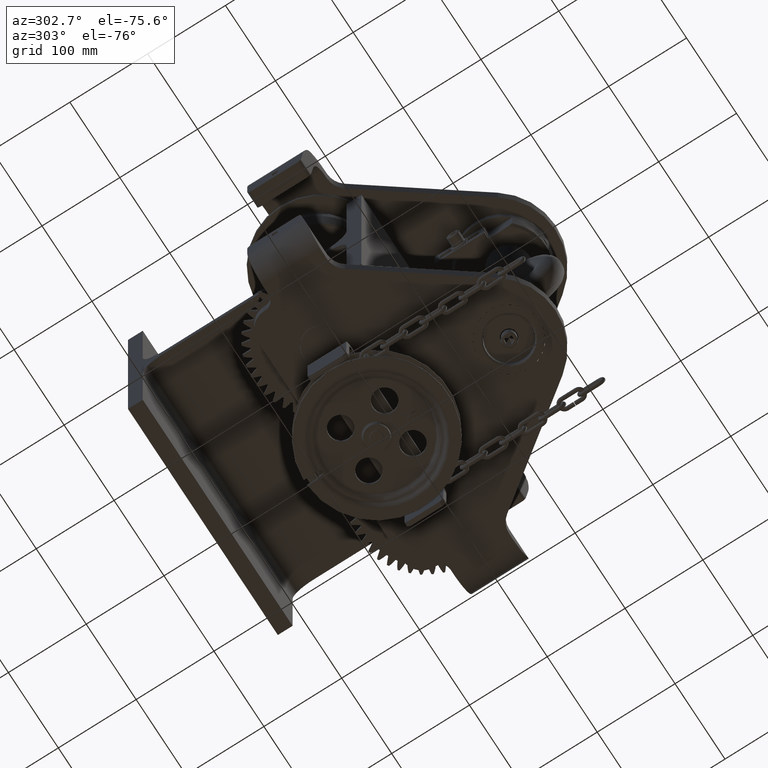
[diagram: clean part render]
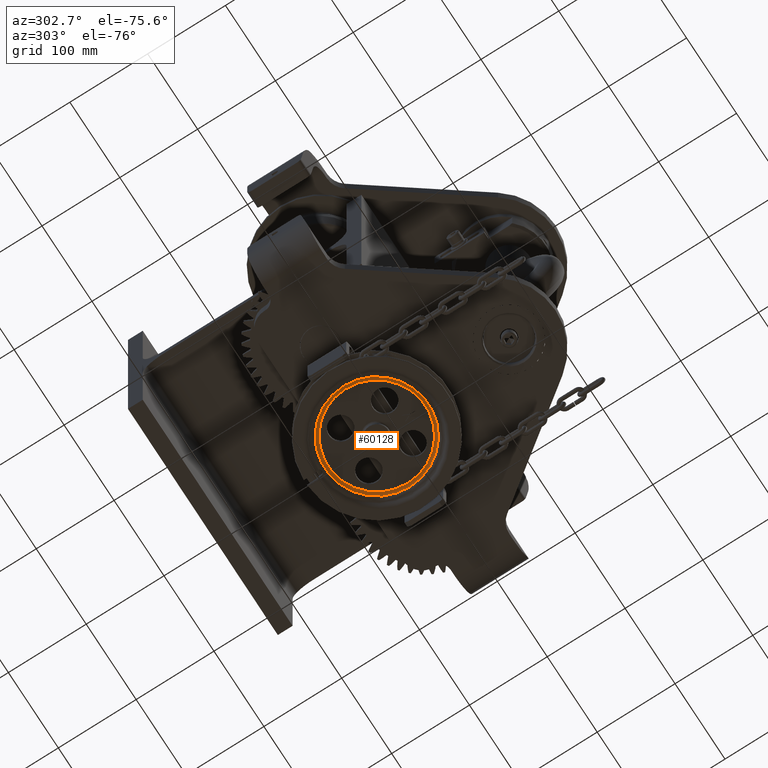
[diagram: same view with one face highlighted and labeled with its STEP entity id]
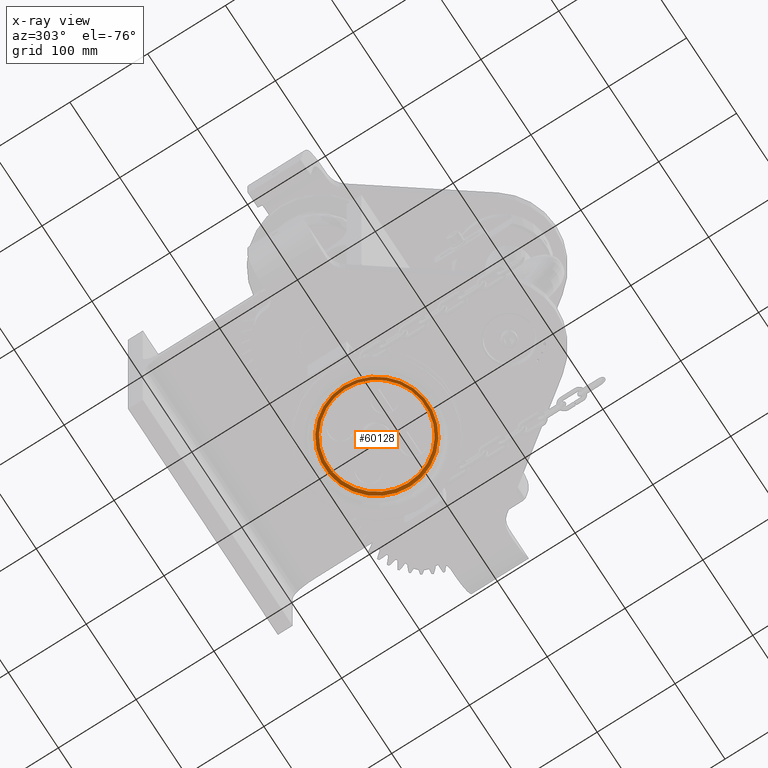
[diagram: x-ray of the same camera — body ghosted, the highlighted face saturated]
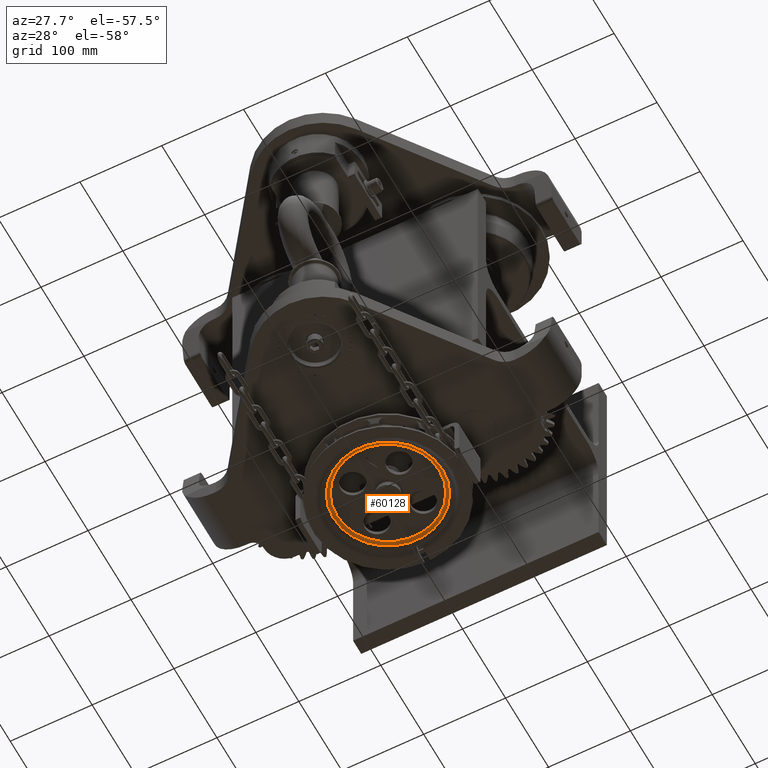
[diagram: same view with one face highlighted and labeled with its STEP entity id]
A machine part, auxiliary view. The second image highlights one B-rep face of the part: STEP entity #60128.
The next image is the same camera in x-ray: the body ghosted, the highlighted face saturated — about 0% of this face is hidden behind the body in this view.
A second angle (auxiliary view) of the same face is appended — the face is thin or edge-on in the first view.
In plain terms, the highlighted toroidal blend (fillet) surface has major radius 62.575 mm and minor (blend) radius 5 mm.
Its self-contained STEP definition (entity closure, byte-faithful):
#1025 = VERTEX_POINT ( 'NONE', #15578 ) ;
#3228 = CARTESIAN_POINT ( 'NONE',  ( 2.775557561562892600E-014, -73.49999999999934600, -248.2222222222222300 ) ) ;
#3545 = EDGE_CURVE ( 'NONE', #1025, #1025, #50686, .T. ) ;
#5685 = DIRECTION ( 'NONE',  ( 1.000000000000000000, -7.681083481868015000E-047, 1.863569723308740800E-031 ) ) ;
#6986 = FACE_OUTER_BOUND ( 'NONE', #47394, .T. ) ;
#8419 = DIRECTION ( 'NONE',  ( 1.000000000000000000, 0.0000000000000000000, 0.0000000000000000000 ) ) ;
#9436 = FACE_OUTER_BOUND ( 'NONE', #15061, .T. ) ;
#9992 = AXIS2_PLACEMENT_3D ( 'NONE', #16004, #10419, #5685 ) ;
#10419 = DIRECTION ( 'NONE',  ( -1.863569723308740800E-031, -4.121704375101331800E-016, 1.000000000000000000 ) ) ;
#12837 = ORIENTED_EDGE ( 'NONE', *, *, #3545, .F. ) ;
#15061 = EDGE_LOOP ( 'NONE', ( #12837 ) ) ;
#15578 = CARTESIAN_POINT ( 'NONE',  ( 66.73242493609397700, -73.49999999999934600, -248.2222222222222300 ) ) ;
#16004 = CARTESIAN_POINT ( 'NONE',  ( 2.775557561562892600E-014, -73.49999999999934600, -251.0000000000001100 ) ) ;
#17893 = CARTESIAN_POINT ( 'NONE',  ( 2.775557561562892600E-014, -73.49999999999934600, -246.0000000000001100 ) ) ;
#20274 = VERTEX_POINT ( 'NONE', #28438 ) ;
#24071 = DIRECTION ( 'NONE',  ( -1.863569723308740800E-031, -4.121704375101331800E-016, 1.000000000000000000 ) ) ;
#28169 = DIRECTION ( 'NONE',  ( 1.000000000000000000, 0.0000000000000000000, 0.0000000000000000000 ) ) ;
#28438 = CARTESIAN_POINT ( 'NONE',  ( 62.57502783967833400, -73.49999999999934600, -246.0000000000001100 ) ) ;
#31907 = TOROIDAL_SURFACE ( 'NONE', #9992, 62.57502783967830600, 5.000000000000101300 ) ;
#34877 = AXIS2_PLACEMENT_3D ( 'NONE', #17893, #59023, #28169 ) ;
#47394 = EDGE_LOOP ( 'NONE', ( #50222 ) ) ;
#48197 = EDGE_CURVE ( 'NONE', #20274, #20274, #64231, .T. ) ;
#50222 = ORIENTED_EDGE ( 'NONE', *, *, #48197, .T. ) ;
#50686 = CIRCLE ( 'NONE', #52912, 66.73242493609394900 ) ;
#52912 = AXIS2_PLACEMENT_3D ( 'NONE', #3228, #24071, #8419 ) ;
#59023 = DIRECTION ( 'NONE',  ( -1.863569723308740800E-031, -4.121704375101331800E-016, 1.000000000000000000 ) ) ;
#60128 = ADVANCED_FACE ( 'NONE', ( #9436, #6986 ), #31907, .F. ) ;
#64231 = CIRCLE ( 'NONE', #34877, 62.57502783967830600 ) ;